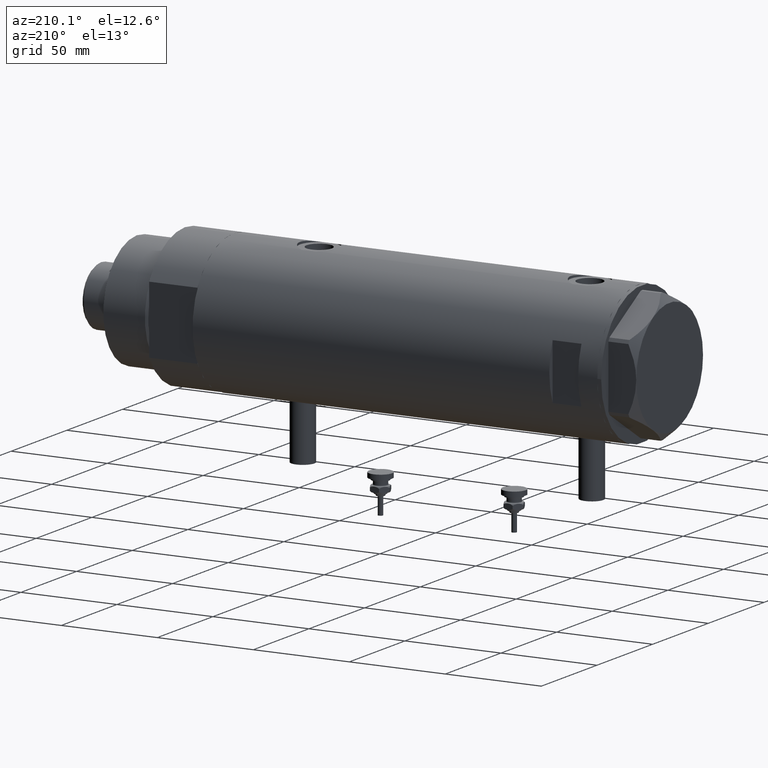
[diagram: clean part render]
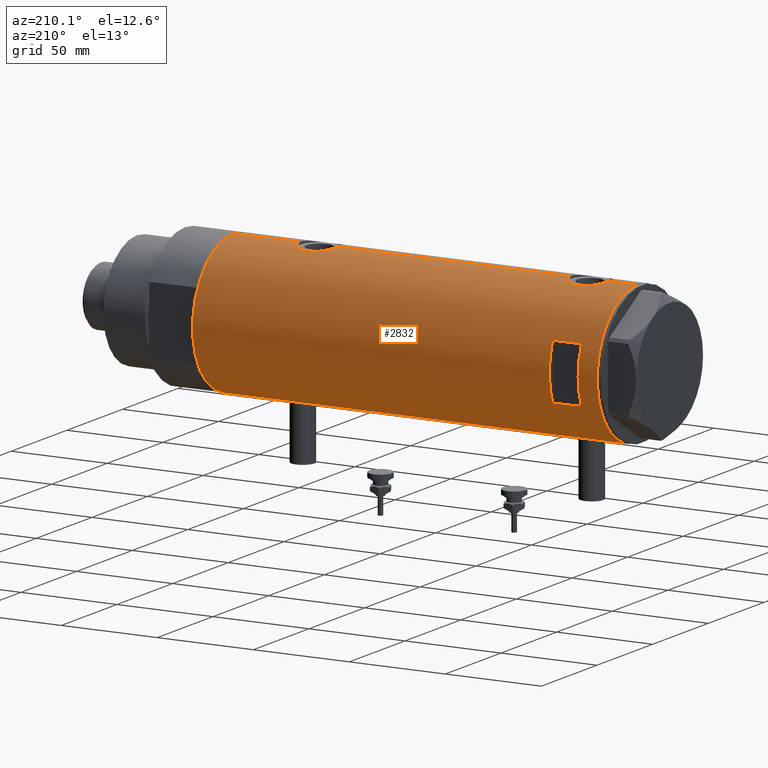
[diagram: same view with one face highlighted and labeled with its STEP entity id]
A machine part, auxiliary view. The second image highlights one B-rep face of the part: STEP entity #2832.
In plain terms, the highlighted cylindrical surface (partial cylindrical patch) has radius 36.5 mm, axis along (-1, -0, 0).
Its self-contained STEP definition (entity closure, byte-faithful):
#23 = CARTESIAN_POINT ( 'NONE',  ( 36.34264078466111414, 3.418717136061404371, 89.81049034040754009 ) ) ;
#111 = CARTESIAN_POINT ( 'NONE',  ( 36.50000000000000000, 0.000000000000000000, 70.40000000000000568 ) ) ;
#118 = CARTESIAN_POINT ( 'NONE',  ( 36.49999999999999289, 0.4961820988516178477, 90.39999999999997726 ) ) ;
#136 = CARTESIAN_POINT ( 'NONE',  ( -36.50000000000000000, 4.469960493350315609E-15, 75.14999999999999147 ) ) ;
#143 = CARTESIAN_POINT ( 'NONE',  ( 35.93456089024233790, 6.410413305453382726, -68.29085963204144605 ) ) ;
#170 = VERTEX_POINT ( 'NONE', #4750 ) ;
#200 = CARTESIAN_POINT ( 'NONE',  ( -36.03936508729894683, 5.782103729777506196, 83.79870532603797528 ) ) ;
#213 = VERTEX_POINT ( 'NONE', #111 ) ;
#219 = DIRECTION ( 'NONE',  ( 0.000000000000000000, 0.000000000000000000, 1.000000000000000000 ) ) ;
#234 = CARTESIAN_POINT ( 'NONE',  ( 35.34894515018992678, 9.096104616284845790, -64.78464083466536749 ) ) ;
#241 = CARTESIAN_POINT ( 'NONE',  ( 35.29999999999999716, 9.282241108697835585, -105.4000000000000057 ) ) ;
#246 = CARTESIAN_POINT ( 'NONE',  ( 36.50000000000000000, 0.000000000000000000, -105.4000000000000057 ) ) ;
#249 = ORIENTED_EDGE ( 'NONE', *, *, #3645, .T. ) ;
#253 = CARTESIAN_POINT ( 'NONE',  ( -36.44628644024910358, 2.015372769639943495, 75.46971871986416147 ) ) ;
#262 = CARTESIAN_POINT ( 'NONE',  ( 35.52737867031126484, 8.373910777960910323, -66.08860356717067930 ) ) ;
#268 = DIRECTION ( 'NONE',  ( 0.000000000000000000, 1.000000000000000000, -4.562560375171875891E-15 ) ) ;
#279 = CARTESIAN_POINT ( 'NONE',  ( -14.49137674618942562, 33.50000000000000000, 80.40000000000003411 ) ) ;
#281 = EDGE_CURVE ( 'NONE', #170, #213, #722, .T. ) ;
#289 = CARTESIAN_POINT ( 'NONE',  ( -36.01679413914728656, 5.919813138266330377, 83.41499691047036436 ) ) ;
#321 = CARTESIAN_POINT ( 'NONE',  ( 36.29420020483469500, 3.877527130731365901, 71.17901025599704212 ) ) ;
#341 = ORIENTED_EDGE ( 'NONE', *, *, #2806, .F. ) ;
#344 = CARTESIAN_POINT ( 'NONE',  ( 14.49137674618942739, 33.50000000000000000, 95.40000000000001990 ) ) ;
#349 = CARTESIAN_POINT ( 'NONE',  ( -36.01524716445114649, 5.931039972055518916, -71.11330731864657650 ) ) ;
#381 = CARTESIAN_POINT ( 'NONE',  ( -36.09617453667821252, 5.415318599347968664, -65.97293357327090746 ) ) ;
#432 = CARTESIAN_POINT ( 'NONE',  ( -36.44628644024910358, 2.015372769639943051, -75.03028128013583853 ) ) ;
#435 = CARTESIAN_POINT ( 'NONE',  ( -36.43371204571226230, 2.206934156026287397, -63.24902718329002482 ) ) ;
#466 = DIRECTION ( 'NONE',  ( 1.000000000000000000, 1.776356839400250465E-15, 0.000000000000000000 ) ) ;
#473 = AXIS2_PLACEMENT_3D ( 'NONE', #5382, #1971, #466 ) ;
#494 = CARTESIAN_POINT ( 'NONE',  ( 35.52347503888660896, 8.410566959990461555, -55.10046032740658006 ) ) ;
#512 = ORIENTED_EDGE ( 'NONE', *, *, #1857, .T. ) ;
#552 = AXIS2_PLACEMENT_3D ( 'NONE', #2249, #5915, #3624 ) ;
#605 = B_SPLINE_CURVE_WITH_KNOTS ( 'NONE', 3,
 ( #1312, #1794, #5449, #5015, #4536, #3176, #435, #3649, #1286, #3111, #2740, #4114, #2098, #4473, #381, #4449, #5902, #3964, #3084, #1788, #2685, #5881, #5384, #3566, #1763, #349, #3168, #1261, #2185, #4895, #5850, #4506, #1285, #3109, #3611, #4923, #3586, #1308, #432, #4955, #5438, #4074, #1343 ),
 .UNSPECIFIED., .F., .F.,
 ( 4, 2, 2, 2, 2, 2, 2, 2, 1, 2, 2, 2, 2, 2, 2, 2, 2, 2, 2, 2, 2, 4 ),
 ( 5.683504623013911987E-19, 0.001223527801214120518, 0.001835291701821175356, 0.002447055602428230194, 0.003670583403642342039, 0.004894111204856454317, 0.006117639006070565294, 0.006729402906677638130, 0.007341166807284710966, 0.007952930707891782067, 0.008564694608498856637, 0.009788222409713002309, 0.01101175021092714625, 0.01223527801214129365, 0.01284704191274838730, 0.01345880581335547749, 0.01468233361456966132, 0.01590586141578384169, 0.01651762531639093534, 0.01712938921699802552, 0.01835291701821222324, 0.01957644481942642095 ),
 .UNSPECIFIED. ) ;
#606 = LINE ( 'NONE', #2430, #2494 ) ;
#620 = CARTESIAN_POINT ( 'NONE',  ( 35.40502660484482789, 8.876998817796907915, -65.23098724071236632 ) ) ;
#642 = CARTESIAN_POINT ( 'NONE',  ( -36.39522946636253664, 2.769519034821243508, 75.79336076268727140 ) ) ;
#703 = CARTESIAN_POINT ( 'NONE',  ( -36.01524716445113938, 5.931039972055517140, 79.38669268135345192 ) ) ;
#712 = CARTESIAN_POINT ( 'NONE',  ( 36.36225053217121683, 3.177096004138046048, -70.08516024475980544 ) ) ;
#722 = LINE ( 'NONE', #246, #2184 ) ;
#742 = CARTESIAN_POINT ( 'NONE',  ( 36.34264078466110703, 3.418717136061401263, -51.18950965959248833 ) ) ;
#743 = LINE ( 'NONE', #2576, #5445 ) ;
#768 = CARTESIAN_POINT ( 'NONE',  ( -35.96094343308266161, 6.249843792257633979, 81.81087110344569169 ) ) ;
#773 = VERTEX_POINT ( 'NONE', #3971 ) ;
#776 = CARTESIAN_POINT ( 'NONE',  ( 36.00145998247696610, 6.026272765084655703, -52.60449611787613122 ) ) ;
#795 = CARTESIAN_POINT ( 'NONE',  ( 36.18948008481302026, 4.772042575486197258, 71.59822368756843503 ) ) ;
#817 = EDGE_CURVE ( 'NONE', #1106, #2647, #743, .T. ) ;
#824 = CARTESIAN_POINT ( 'NONE',  ( 35.29999999999999716, 9.282241108697832033, 84.12021504754764578 ) ) ;
#910 = CARTESIAN_POINT ( 'NONE',  ( -36.49292802938586533, 0.8230716655928910219, 75.19093061246483956 ) ) ;
#944 = CARTESIAN_POINT ( 'NONE',  ( 36.18937351723702989, 4.773052864917641358, 89.20135993118843487 ) ) ;
#999 = ORIENTED_EDGE ( 'NONE', *, *, #3782, .F. ) ;
#1006 = EDGE_CURVE ( 'NONE', #2925, #1957, #1642, .T. ) ;
#1025 = CARTESIAN_POINT ( 'NONE',  ( -36.50000000000000000, 4.469960493350315609E-15, -75.35000000000000853 ) ) ;
#1095 = CARTESIAN_POINT ( 'NONE',  ( -36.30181775639988473, 3.813582387016785535, 76.43163942425562141 ) ) ;
#1103 = CARTESIAN_POINT ( 'NONE',  ( 36.50000000000000000, 1.005842003469122004, -70.59999999999999432 ) ) ;
#1106 = VERTEX_POINT ( 'NONE', #5088 ) ;
#1125 = CARTESIAN_POINT ( 'NONE',  ( -36.19624103943463922, 4.708090268046847271, 85.53061221446137097 ) ) ;
#1134 = AXIS2_PLACEMENT_3D ( 'NONE', #3255, #4617, #1881 ) ;
#1146 = CARTESIAN_POINT ( 'NONE',  ( 35.29999999999999716, 9.282241108697832033, 76.67978495245235138 ) ) ;
#1174 = CARTESIAN_POINT ( 'NONE',  ( 36.18937351723702989, 4.773052864917637805, -51.79864006881157934 ) ) ;
#1201 = CARTESIAN_POINT ( 'NONE',  ( 36.45853166336080164, 1.985123042546143024, -70.45162670417735740 ) ) ;
#1214 = CARTESIAN_POINT ( 'NONE',  ( 35.79766710091575987, 7.135341284989890731, 73.37649479439095046 ) ) ;
#1216 = CARTESIAN_POINT ( 'NONE',  ( -36.11199073531170001, 5.309184630646988090, 84.70412840766836382 ) ) ;
#1239 = EDGE_CURVE ( 'NONE', #213, #5285, #5864, .T. ) ;
#1258 = VERTEX_POINT ( 'NONE', #344 ) ;
#1261 = CARTESIAN_POINT ( 'NONE',  ( -36.06690560274406465, 5.606949625760679901, -71.86885923958934086 ) ) ;
#1285 = CARTESIAN_POINT ( 'NONE',  ( -36.26695135241003953, 4.128455078791312793, -73.81037591644739848 ) ) ;
#1286 = CARTESIAN_POINT ( 'NONE',  ( -36.36688032967140316, 3.133094607697481493, -63.67663567362490085 ) ) ;
#1308 = CARTESIAN_POINT ( 'NONE',  ( -36.40902375114221456, 2.582415566883933256, -74.79521691469689415 ) ) ;
#1312 = CARTESIAN_POINT ( 'NONE',  ( -36.50000000000000000, -5.849986204104554638E-16, -62.85000000000000142 ) ) ;
#1338 = VECTOR ( 'NONE', #4464, 1000.000000000000000 ) ;
#1343 = CARTESIAN_POINT ( 'NONE',  ( -36.50000000000000000, 4.469960493350315609E-15, -75.35000000000000853 ) ) ;
#1392 = CARTESIAN_POINT ( 'NONE',  ( 35.69321149401849880, 7.633476302278300096, -54.13536927833557399 ) ) ;
#1399 = CARTESIAN_POINT ( 'NONE',  ( 36.41717583764487642, 2.469534783404760514, 90.09348011175671900 ) ) ;
#1425 = CARTESIAN_POINT ( 'NONE',  ( 35.39804469700249712, 8.909380959553015344, -55.94946835517159656 ) ) ;
#1429 = CYLINDRICAL_SURFACE ( 'NONE', #1134, 36.50000000000000000 ) ;
#1460 = CARTESIAN_POINT ( 'NONE',  ( 36.50000000000000000, 4.344614706140975428E-19, 90.39999999999999147 ) ) ;
#1464 = CARTESIAN_POINT ( 'NONE',  ( 35.72794581931695035, 7.469526493268199729, 87.05339796728263480 ) ) ;
#1556 = ORIENTED_EDGE ( 'NONE', *, *, #1006, .F. ) ;
#1576 = CARTESIAN_POINT ( 'NONE',  ( -36.11206433103227909, 5.308658295084049072, 78.09515351959024088 ) ) ;
#1583 = CARTESIAN_POINT ( 'NONE',  ( 36.29611582693039651, 3.878758190381166759, -51.36955010900450702 ) ) ;
#1591 = LINE ( 'NONE', #2553, #2574 ) ;
#1600 = B_SPLINE_CURVE_WITH_KNOTS ( 'NONE', 3,
 ( #2892, #4708, #1912, #5570, #1464, #4596, #4646, #2387, #2305, #4197, #944, #4111, #23, #1855, #1399, #3222, #2776, #2335, #118, #4133 ),
 .UNSPECIFIED., .F., .F.,
 ( 4, 2, 2, 2, 2, 2, 2, 2, 2, 4 ),
 ( 1.551583845779545699E-17, 0.002977391289382861662, 0.003721739111728563851, 0.004466086934074266906, 0.005954782578765698171, 0.007443478223457130304, 0.008932173868148563303, 0.009676521690494287176, 0.01042086951284001105, 0.01190956515753145012 ),
 .UNSPECIFIED. ) ;
#1607 = CARTESIAN_POINT ( 'NONE',  ( -36.39638105034455862, 2.774378062517170562, 87.01543332699102962 ) ) ;
#1642 = LINE ( 'NONE', #5718, #2458 ) ;
#1645 = CARTESIAN_POINT ( 'NONE',  ( -36.36688032967141027, 3.133094607697489931, 86.82336432637509915 ) ) ;
#1653 = CARTESIAN_POINT ( 'NONE',  ( 36.49999999999999289, 0.4961820988516180142, -50.59999999999998721 ) ) ;
#1713 = CARTESIAN_POINT ( 'NONE',  ( 36.40008489419981430, 2.709263960908028679, -50.97081895403610474 ) ) ;
#1732 = EDGE_LOOP ( 'NONE', ( #512, #5259, #3165, #3948, #341, #4035, #5785, #2546, #2778, #249, #4505, #2236, #999, #2730, #3869, #5408 ) ) ;
#1763 = CARTESIAN_POINT ( 'NONE',  ( -35.99530513653992614, 6.049346314076206710, -70.72332583035836251 ) ) ;
#1782 = CARTESIAN_POINT ( 'NONE',  ( 35.34894515018993388, 9.096104616284849342, 76.21535916533458987 ) ) ;
#1788 = CARTESIAN_POINT ( 'NONE',  ( -35.98846897517729815, 6.089479646546500646, -67.67765108453481560 ) ) ;
#1794 = CARTESIAN_POINT ( 'NONE',  ( -36.50000000000000000, 0.4137727629436734333, -62.84999999999998721 ) ) ;
#1855 = CARTESIAN_POINT ( 'NONE',  ( 36.40008489419980720, 2.709263960908030899, 90.02918104596392368 ) ) ;
#1857 = EDGE_CURVE ( 'NONE', #4522, #3504, #2370, .T. ) ;
#1881 = DIRECTION ( 'NONE',  ( 1.000000000000000000, 0.000000000000000000, 0.000000000000000000 ) ) ;
#1903 = AXIS2_PLACEMENT_3D ( 'NONE', #2633, #2190, #2578 ) ;
#1912 = CARTESIAN_POINT ( 'NONE',  ( 35.52347503888661606, 8.410566959990463332, 85.89953967259343415 ) ) ;
#1926 = CARTESIAN_POINT ( 'NONE',  ( -36.50000000000000000, 4.469960816887837641E-15, 105.4000000000000057 ) ) ;
#1957 = VERTEX_POINT ( 'NONE', #2816 ) ;
#1971 = DIRECTION ( 'NONE',  ( -0.000000000000000000, -0.000000000000000000, -1.000000000000000000 ) ) ;
#1978 = CARTESIAN_POINT ( 'NONE',  ( 35.72860827204724643, 7.471059959301278752, -67.26525150474407155 ) ) ;
#1985 = DIRECTION ( 'NONE',  ( -0.000000000000000000, -0.000000000000000000, -1.000000000000000000 ) ) ;
#2001 = VECTOR ( 'NONE', #4581, 1000.000000000000000 ) ;
#2022 = LINE ( 'NONE', #5313, #4085 ) ;
#2032 = CARTESIAN_POINT ( 'NONE',  ( 36.50000000000000000, 0.000000000000000000, 105.4000000000000057 ) ) ;
#2033 = CARTESIAN_POINT ( 'NONE',  ( -36.30200038006935870, 3.811959488093746184, 86.36972104836003439 ) ) ;
#2042 = EDGE_CURVE ( 'NONE', #4028, #4670, #3529, .T. ) ;
#2060 = CARTESIAN_POINT ( 'NONE',  ( -36.49297130294515057, 0.8204796224394288462, 87.60931692217734224 ) ) ;
#2093 = CARTESIAN_POINT ( 'NONE',  ( -36.46598788992681506, 1.625721481788709344, 75.35127953286161073 ) ) ;
#2094 = ORIENTED_EDGE ( 'NONE', *, *, #3468, .F. ) ;
#2098 = CARTESIAN_POINT ( 'NONE',  ( -36.16126303108063667, 4.966520032693295228, -65.28358772254718190 ) ) ;
#2102 = CARTESIAN_POINT ( 'NONE',  ( 35.29999999999999716, 9.282241108697832033, -64.32021504754764862 ) ) ;
#2111 = VECTOR ( 'NONE', #2192, 1000.000000000000000 ) ;
#2130 = EDGE_CURVE ( 'NONE', #2604, #2925, #3138, .T. ) ;
#2154 = CARTESIAN_POINT ( 'NONE',  ( 36.13018480315371761, 5.199168368309160293, 71.84353501791950691 ) ) ;
#2156 = CARTESIAN_POINT ( 'NONE',  ( -35.99700617875953412, 6.038972911021586398, 83.02333185798322290 ) ) ;
#2167 = VERTEX_POINT ( 'NONE', #3526 ) ;
#2184 = VECTOR ( 'NONE', #5741, 1000.000000000000000 ) ;
#2185 = CARTESIAN_POINT ( 'NONE',  ( -36.09643313249888763, 5.413601294342280212, -72.23007773391850606 ) ) ;
#2190 = DIRECTION ( 'NONE',  ( 0.000000000000000000, 0.000000000000000000, 1.000000000000000000 ) ) ;
#2192 = DIRECTION ( 'NONE',  ( 0.000000000000000000, 0.000000000000000000, 1.000000000000000000 ) ) ;
#2234 = CARTESIAN_POINT ( 'NONE',  ( 36.26917563968160607, 4.104523505324173982, 71.27784011632526529 ) ) ;
#2236 = ORIENTED_EDGE ( 'NONE', *, *, #281, .F. ) ;
#2249 = CARTESIAN_POINT ( 'NONE',  ( 0.000000000000000000, 0.000000000000000000, -105.4000000000000057 ) ) ;
#2263 = CARTESIAN_POINT ( 'NONE',  ( -36.50000000000000000, 4.469960493350315609E-15, 75.14999999999999147 ) ) ;
#2298 = VERTEX_POINT ( 'NONE', #1460 ) ;
#2305 = CARTESIAN_POINT ( 'NONE',  ( 36.00145998247696610, 6.026272765084661032, 88.39550388212386167 ) ) ;
#2335 = CARTESIAN_POINT ( 'NONE',  ( 36.48988646280794512, 0.9921857666168150125, 90.36328115134425332 ) ) ;
#2370 = CIRCLE ( 'NONE', #552, 36.50000000000000000 ) ;
#2387 = CARTESIAN_POINT ( 'NONE',  ( 35.93435287561198521, 6.411571491280765756, 88.08988644922843037 ) ) ;
#2430 = CARTESIAN_POINT ( 'NONE',  ( 14.49137674618942562, 33.50000000000000000, -105.4000000000000057 ) ) ;
#2458 = VECTOR ( 'NONE', #5661, 1000.000000000000000 ) ;
#2471 = CARTESIAN_POINT ( 'NONE',  ( -35.98846897517731236, 6.089479646546502423, 82.82234891546522704 ) ) ;
#2494 = VECTOR ( 'NONE', #1985, 1000.000000000000000 ) ;
#2506 = CARTESIAN_POINT ( 'NONE',  ( -36.40902375114221456, 2.582415566883933256, 75.70478308530312006 ) ) ;
#2516 = CARTESIAN_POINT ( 'NONE',  ( 35.83170458557578542, 6.955065627744197343, -53.41058328087536466 ) ) ;
#2535 = CARTESIAN_POINT ( 'NONE',  ( -36.47290054070997911, 1.420408912806973678, 87.48986981660016227 ) ) ;
#2544 = CARTESIAN_POINT ( 'NONE',  ( 36.26917563968161318, 4.104523505324172206, -69.72215988367474893 ) ) ;
#2546 = ORIENTED_EDGE ( 'NONE', *, *, #4414, .F. ) ;
#2553 = CARTESIAN_POINT ( 'NONE',  ( 36.50000000000000000, 0.000000000000000000, -105.4000000000000057 ) ) ;
#2560 = CARTESIAN_POINT ( 'NONE',  ( 35.40502660484482078, 8.876998817796904362, 75.76901275928764790 ) ) ;
#2574 = VECTOR ( 'NONE', #219, 1000.000000000000000 ) ;
#2576 = CARTESIAN_POINT ( 'NONE',  ( -36.50000000000000000, 4.469960816887837641E-15, -105.4000000000000057 ) ) ;
#2578 = DIRECTION ( 'NONE',  ( 1.000000000000000000, 0.000000000000000000, 0.000000000000000000 ) ) ;
#2603 = CARTESIAN_POINT ( 'NONE',  ( -36.09643313249890184, 5.413601294342284653, 78.26992226608150816 ) ) ;
#2604 = VERTEX_POINT ( 'NONE', #5311 ) ;
#2625 = CARTESIAN_POINT ( 'NONE',  ( 35.93456089024233790, 6.410413305453380950, 72.70914036795855395 ) ) ;
#2633 = CARTESIAN_POINT ( 'NONE',  ( 0.000000000000000000, 0.000000000000000000, 105.4000000000000057 ) ) ;
#2644 = CARTESIAN_POINT ( 'NONE',  ( 36.50000000000000000, 0.000000000000000000, 70.40000000000000568 ) ) ;
#2647 = VERTEX_POINT ( 'NONE', #2263 ) ;
#2664 = VERTEX_POINT ( 'NONE', #3612 ) ;
#2685 = CARTESIAN_POINT ( 'NONE',  ( -35.96793274302674348, 6.210029014836887740, -68.28305762320682959 ) ) ;
#2730 = ORIENTED_EDGE ( 'NONE', *, *, #5297, .T. ) ;
#2740 = CARTESIAN_POINT ( 'NONE',  ( -36.26643311080166399, 4.132772529026634167, -64.39380594730117480 ) ) ;
#2776 = CARTESIAN_POINT ( 'NONE',  ( 36.45954139109321090, 1.735915671103594349, 90.25136781147007525 ) ) ;
#2778 = ORIENTED_EDGE ( 'NONE', *, *, #3994, .F. ) ;
#2802 = CARTESIAN_POINT ( 'NONE',  ( -36.50000000000000000, 4.469960816887837641E-15, -105.4000000000000057 ) ) ;
#2806 = EDGE_CURVE ( 'NONE', #773, #2647, #3950, .T. ) ;
#2816 = CARTESIAN_POINT ( 'NONE',  ( -14.49137674618942739, 33.50000000000000000, 95.40000000000001990 ) ) ;
#2832 = ADVANCED_FACE ( 'NONE', ( #3217, #3304 ), #1429, .T. ) ;
#2850 = LINE ( 'NONE', #3757, #2001 ) ;
#2892 = CARTESIAN_POINT ( 'NONE',  ( 35.29999999999999716, 9.282241108697832033, 84.12021504754764578 ) ) ;
#2898 = VERTEX_POINT ( 'NONE', #1025 ) ;
#2923 = CARTESIAN_POINT ( 'NONE',  ( -36.36587679577596077, 3.131448301962866054, 75.98717534426381803 ) ) ;
#2925 = VERTEX_POINT ( 'NONE', #279 ) ;
#2955 = CARTESIAN_POINT ( 'NONE',  ( -35.99530513653993324, 6.049346314076207598, 79.77667416964166591 ) ) ;
#2991 = CARTESIAN_POINT ( 'NONE',  ( -35.96088929326157313, 6.250155299092687855, 80.99389505236753450 ) ) ;
#3046 = AXIS2_PLACEMENT_3D ( 'NONE', #3456, #3510, #268 ) ;
#3084 = CARTESIAN_POINT ( 'NONE',  ( -35.99700617875953412, 6.038972911021587286, -67.47666814201679131 ) ) ;
#3100 = LINE ( 'NONE', #4914, #1338 ) ;
#3109 = CARTESIAN_POINT ( 'NONE',  ( -36.30181775639987052, 3.813582387016787312, -74.06836057574437859 ) ) ;
#3111 = CARTESIAN_POINT ( 'NONE',  ( -36.30200038006935870, 3.811959488093740411, -64.13027895163995140 ) ) ;
#3138 = CIRCLE ( 'NONE', #3046, 36.50000000000000000 ) ;
#3165 = ORIENTED_EDGE ( 'NONE', *, *, #3861, .F. ) ;
#3168 = CARTESIAN_POINT ( 'NONE',  ( -36.05296344941216802, 5.695624845616830356, -71.68154856536759212 ) ) ;
#3176 = CARTESIAN_POINT ( 'NONE',  ( -36.44504802628534890, 2.011764947064735409, -63.17906355091480464 ) ) ;
#3202 = ORIENTED_EDGE ( 'NONE', *, *, #2130, .F. ) ;
#3217 = FACE_BOUND ( 'NONE', #4850, .T. ) ;
#3222 = CARTESIAN_POINT ( 'NONE',  ( 36.44688397185922923, 1.983417953489138297, 90.20449957648254724 ) ) ;
#3255 = CARTESIAN_POINT ( 'NONE',  ( 0.000000000000000000, 0.000000000000000000, -105.4000000000000057 ) ) ;
#3304 = FACE_OUTER_BOUND ( 'NONE', #1732, .T. ) ;
#3306 = B_SPLINE_CURVE_WITH_KNOTS ( 'NONE', 3,
 ( #5305, #1103, #1201, #712, #5207, #4714, #2544, #3875, #5729, #5635, #143, #3352, #1978, #5700, #262, #620, #234, #2102 ),
 .UNSPECIFIED., .F., .F.,
 ( 4, 2, 2, 2, 2, 2, 2, 2, 4 ),
 ( -1.084202172485504434E-18, 0.002973648994175745811, 0.003717061242719678360, 0.004460473491263610910, 0.005947297988351454325, 0.007434122485439297739, 0.008920946982527140287, 0.01040777147961498283, 0.01189459597670282365 ),
 .UNSPECIFIED. ) ;
#3352 = CARTESIAN_POINT ( 'NONE',  ( 35.79766710091575987, 7.135341284989892507, -67.62350520560906375 ) ) ;
#3355 = CARTESIAN_POINT ( 'NONE',  ( 35.29999999999999716, 9.282241108697832033, -56.87978495245235422 ) ) ;
#3405 = CARTESIAN_POINT ( 'NONE',  ( -36.16083474549354548, 4.969527450313384165, 77.58794680877252858 ) ) ;
#3440 = CARTESIAN_POINT ( 'NONE',  ( -36.09617453667821252, 5.415318599347968664, 84.52706642672910675 ) ) ;
#3452 = CARTESIAN_POINT ( 'NONE',  ( 36.12877841835538106, 5.208882251161921495, -52.04946835209709377 ) ) ;
#3456 = CARTESIAN_POINT ( 'NONE',  ( 0.000000000000000000, 0.000000000000000000, 80.40000000000017621 ) ) ;
#3468 = EDGE_CURVE ( 'NONE', #1957, #1258, #4287, .T. ) ;
#3504 = VERTEX_POINT ( 'NONE', #2802 ) ;
#3510 = DIRECTION ( 'NONE',  ( 0.000000000000000000, 4.625929269271492422E-15, 1.000000000000000000 ) ) ;
#3525 = CARTESIAN_POINT ( 'NONE',  ( 36.49999999999999289, 1.005842003469121781, 70.40000000000001990 ) ) ;
#3526 = CARTESIAN_POINT ( 'NONE',  ( 35.29999999999999716, 9.282241108697832033, -64.32021504754764862 ) ) ;
#3529 = CIRCLE ( 'NONE', #1903, 36.50000000000000000 ) ;
#3541 = CARTESIAN_POINT ( 'NONE',  ( 36.48988646280793802, 0.9921857666168130141, -50.63671884865574668 ) ) ;
#3566 = CARTESIAN_POINT ( 'NONE',  ( -35.96805604460922012, 6.209309709790233889, -69.92112758268173422 ) ) ;
#3583 = CARTESIAN_POINT ( 'NONE',  ( 36.36225053217120262, 3.177096004138046048, 70.91483975524022298 ) ) ;
#3586 = CARTESIAN_POINT ( 'NONE',  ( -36.39522946636253664, 2.769519034821244396, -74.70663923731272860 ) ) ;
#3611 = CARTESIAN_POINT ( 'NONE',  ( -36.35033317675379294, 3.306376218664579980, -74.40770719416053680 ) ) ;
#3612 = CARTESIAN_POINT ( 'NONE',  ( 35.29999999999999716, 9.282241108697832033, -56.87978495245235422 ) ) ;
#3624 = DIRECTION ( 'NONE',  ( 1.000000000000000000, 0.000000000000000000, 0.000000000000000000 ) ) ;
#3645 = EDGE_CURVE ( 'NONE', #4818, #5285, #3100, .T. ) ;
#3649 = CARTESIAN_POINT ( 'NONE',  ( -36.39638105034455151, 2.774378062517169674, -63.48456667300896328 ) ) ;
#3687 = CARTESIAN_POINT ( 'NONE',  ( 35.72794581931695745, 7.469526493268201506, -53.94660203271736520 ) ) ;
#3739 = VERTEX_POINT ( 'NONE', #3955 ) ;
#3744 = B_SPLINE_CURVE_WITH_KNOTS ( 'NONE', 3,
 ( #3355, #1425, #494, #1392, #3687, #5075, #2516, #4425, #776, #3452, #1174, #1583, #742, #1713, #5702, #4393, #5306, #3541, #1653, #4331 ),
 .UNSPECIFIED., .F., .F.,
 ( 4, 2, 2, 2, 2, 2, 2, 2, 2, 4 ),
 ( 1.551583845779545699E-17, 0.002977391289382848218, 0.003721739111728565152, 0.004466086934074281652, 0.005954782578765715519, 0.007443478223457148518, 0.008932173868148582385, 0.009676521690494299319, 0.01042086951284001625, 0.01190956515753145185 ),
 .UNSPECIFIED. ) ;
#3757 = CARTESIAN_POINT ( 'NONE',  ( 36.50000000000000000, 0.000000000000000000, -105.4000000000000057 ) ) ;
#3782 = EDGE_CURVE ( 'NONE', #2664, #170, #3744, .T. ) ;
#3861 = EDGE_CURVE ( 'NONE', #1106, #2898, #605, .T. ) ;
#3869 = ORIENTED_EDGE ( 'NONE', *, *, #4732, .F. ) ;
#3875 = CARTESIAN_POINT ( 'NONE',  ( 36.18948008481303447, 4.772042575486197258, -69.40177631243156497 ) ) ;
#3885 = DIRECTION ( 'NONE',  ( -0.000000000000000000, -0.000000000000000000, -1.000000000000000000 ) ) ;
#3933 = CARTESIAN_POINT ( 'NONE',  ( -35.96793274302675059, 6.210029014836887740, 82.21694237679317041 ) ) ;
#3948 = ORIENTED_EDGE ( 'NONE', *, *, #817, .T. ) ;
#3950 = B_SPLINE_CURVE_WITH_KNOTS ( 'NONE', 3,
 ( #4796, #4321, #2060, #2535, #5322, #5293, #4351, #1607, #1645, #2033, #5201, #1125, #4855, #1216, #3440, #5264, #200, #289, #2156, #2471, #3933, #768, #2991, #4763, #2955, #703, #5691, #5784, #2603, #1576, #3405, #3957, #4418, #1095, #5229, #2923, #642, #2506, #253, #2093, #910, #4643, #136 ),
 .UNSPECIFIED., .F., .F.,
 ( 4, 2, 2, 2, 2, 2, 2, 2, 1, 2, 2, 2, 2, 2, 2, 2, 2, 2, 2, 2, 2, 4 ),
 ( 1.367394070233553059E-18, 0.001223527801214184920, 0.001835291701821280957, 0.002447055602428376345, 0.003670583403642568420, 0.004894111204856760496, 0.006117639006070953005, 0.006729402906678031912, 0.007341166807285110819, 0.007952930707892187992, 0.008564694608499267767, 0.009788222409713425581, 0.01101175021092758340, 0.01223527801214174121, 0.01284704191274879843, 0.01345880581335585913, 0.01468233361456997531, 0.01590586141578409149, 0.01651762531639115392, 0.01712938921699821287, 0.01835291701821231691, 0.01957644481942642095 ),
 .UNSPECIFIED. ) ;
#3955 = CARTESIAN_POINT ( 'NONE',  ( 36.50000000000000000, 0.000000000000000000, -70.59999999999999432 ) ) ;
#3957 = CARTESIAN_POINT ( 'NONE',  ( -36.19597718496777361, 4.710322426433901200, 77.27148389237981974 ) ) ;
#3964 = CARTESIAN_POINT ( 'NONE',  ( -36.01679413914727235, 5.919813138266325048, -67.08500308952962143 ) ) ;
#3971 = CARTESIAN_POINT ( 'NONE',  ( -36.50000000000000000, 1.407447864834978200E-15, 87.65000000000000568 ) ) ;
#3988 = CARTESIAN_POINT ( 'NONE',  ( 36.34070350304396158, 3.414301401755541310, 70.99763782624093267 ) ) ;
#3994 = EDGE_CURVE ( 'NONE', #4818, #2298, #1600, .T. ) ;
#4028 = VERTEX_POINT ( 'NONE', #2032 ) ;
#4035 = ORIENTED_EDGE ( 'NONE', *, *, #4367, .T. ) ;
#4044 = CARTESIAN_POINT ( 'NONE',  ( 35.59366931936805400, 8.089554397885866166, 74.50072680912187195 ) ) ;
#4074 = CARTESIAN_POINT ( 'NONE',  ( -36.50000000000000711, 0.4083036190459274350, -75.35000000000002274 ) ) ;
#4085 = VECTOR ( 'NONE', #4725, 1000.000000000000000 ) ;
#4111 = CARTESIAN_POINT ( 'NONE',  ( 36.29611582693039651, 3.878758190381167648, 89.63044989099550719 ) ) ;
#4114 = CARTESIAN_POINT ( 'NONE',  ( -36.19624103943463211, 4.708090268046848159, -64.96938778553862903 ) ) ;
#4133 = CARTESIAN_POINT ( 'NONE',  ( 36.50000000000000000, 4.344614706140975428E-19, 90.39999999999999147 ) ) ;
#4197 = CARTESIAN_POINT ( 'NONE',  ( 36.12877841835538817, 5.208882251161925936, 88.95053164790290623 ) ) ;
#4276 = EDGE_CURVE ( 'NONE', #4522, #3739, #2850, .T. ) ;
#4287 = CIRCLE ( 'NONE', #473, 36.50000000000000000 ) ;
#4321 = CARTESIAN_POINT ( 'NONE',  ( -36.49999999999999289, 0.4137727629436736554, 87.65000000000000568 ) ) ;
#4331 = CARTESIAN_POINT ( 'NONE',  ( 36.50000000000000000, 4.344609657431182014E-19, -50.60000000000000853 ) ) ;
#4339 = LINE ( 'NONE', #241, #4481 ) ;
#4351 = CARTESIAN_POINT ( 'NONE',  ( -36.43371204571226940, 2.206934156026287397, 87.25097281670997518 ) ) ;
#4367 = EDGE_CURVE ( 'NONE', #773, #4670, #2022, .T. ) ;
#4393 = CARTESIAN_POINT ( 'NONE',  ( 36.44688397185920792, 1.983417953489134300, -50.79550042351748829 ) ) ;
#4394 = DIRECTION ( 'NONE',  ( 0.000000000000000000, 0.000000000000000000, 1.000000000000000000 ) ) ;
#4414 = EDGE_CURVE ( 'NONE', #2298, #4028, #1591, .T. ) ;
#4418 = CARTESIAN_POINT ( 'NONE',  ( -36.26695135241003953, 4.128455078791301247, 76.68962408355262994 ) ) ;
#4425 = CARTESIAN_POINT ( 'NONE',  ( 35.93435287561197811, 6.411571491280765756, -52.91011355077158385 ) ) ;
#4444 = CARTESIAN_POINT ( 'NONE',  ( 35.29999999999999716, 9.282241108697832033, 76.67978495245235138 ) ) ;
#4449 = CARTESIAN_POINT ( 'NONE',  ( -36.06675137892952421, 5.607935153446979903, -66.33318173991243327 ) ) ;
#4464 = DIRECTION ( 'NONE',  ( -0.000000000000000000, -0.000000000000000000, -1.000000000000000000 ) ) ;
#4473 = CARTESIAN_POINT ( 'NONE',  ( -36.11199073531172132, 5.309184630646989866, -65.79587159233167881 ) ) ;
#4481 = VECTOR ( 'NONE', #3885, 1000.000000000000000 ) ;
#4505 = ORIENTED_EDGE ( 'NONE', *, *, #1239, .F. ) ;
#4506 = CARTESIAN_POINT ( 'NONE',  ( -36.19597718496778072, 4.710322426433910969, -73.22851610762013763 ) ) ;
#4514 = ORIENTED_EDGE ( 'NONE', *, *, #5932, .F. ) ;
#4520 = CARTESIAN_POINT ( 'NONE',  ( 36.50000000000000000, 0.000000000000000000, -105.4000000000000057 ) ) ;
#4522 = VERTEX_POINT ( 'NONE', #4520 ) ;
#4536 = CARTESIAN_POINT ( 'NONE',  ( -36.46462099658054967, 1.618684470865504821, -63.05975602975154004 ) ) ;
#4581 = DIRECTION ( 'NONE',  ( 0.000000000000000000, 0.000000000000000000, 1.000000000000000000 ) ) ;
#4596 = CARTESIAN_POINT ( 'NONE',  ( 35.79715675463678792, 7.130463293899335753, 87.41555584105994114 ) ) ;
#4617 = DIRECTION ( 'NONE',  ( 0.000000000000000000, 0.000000000000000000, 1.000000000000000000 ) ) ;
#4643 = CARTESIAN_POINT ( 'NONE',  ( -36.50000000000000000, 0.4083036190459313763, 75.14999999999996305 ) ) ;
#4646 = CARTESIAN_POINT ( 'NONE',  ( 35.83170458557578542, 6.955065627744196455, 87.58941671912465665 ) ) ;
#4670 = VERTEX_POINT ( 'NONE', #1926 ) ;
#4708 = CARTESIAN_POINT ( 'NONE',  ( 35.39804469700249001, 8.909380959553013568, 85.05053164482841055 ) ) ;
#4714 = CARTESIAN_POINT ( 'NONE',  ( 36.29420020483473053, 3.877527130731367233, -69.82098974400294367 ) ) ;
#4725 = DIRECTION ( 'NONE',  ( 0.000000000000000000, 0.000000000000000000, 1.000000000000000000 ) ) ;
#4732 = EDGE_CURVE ( 'NONE', #3739, #2167, #3306, .T. ) ;
#4750 = CARTESIAN_POINT ( 'NONE',  ( 36.50000000000000000, 4.344609657431182014E-19, -50.60000000000000853 ) ) ;
#4763 = CARTESIAN_POINT ( 'NONE',  ( -35.96805604460922012, 6.209309709790233889, 80.57887241731827999 ) ) ;
#4796 = CARTESIAN_POINT ( 'NONE',  ( -36.50000000000000000, 1.407447864834978200E-15, 87.65000000000000568 ) ) ;
#4818 = VERTEX_POINT ( 'NONE', #824 ) ;
#4842 = LINE ( 'NONE', #5828, #2111 ) ;
#4850 = EDGE_LOOP ( 'NONE', ( #1556, #3202, #4514, #2094 ) ) ;
#4855 = CARTESIAN_POINT ( 'NONE',  ( -36.16126303108063667, 4.966520032693296116, 85.21641227745284652 ) ) ;
#4895 = CARTESIAN_POINT ( 'NONE',  ( -36.11206433103226487, 5.308658295084045520, -72.40484648040975912 ) ) ;
#4914 = CARTESIAN_POINT ( 'NONE',  ( 35.29999999999999716, 9.282241108697835585, -105.4000000000000057 ) ) ;
#4923 = CARTESIAN_POINT ( 'NONE',  ( -36.36587679577596077, 3.131448301962866054, -74.51282465573619618 ) ) ;
#4955 = CARTESIAN_POINT ( 'NONE',  ( -36.46598788992681506, 1.625721481788708900, -75.14872046713838927 ) ) ;
#5015 = CARTESIAN_POINT ( 'NONE',  ( -36.47290054070997201, 1.420408912806972124, -63.01013018339985194 ) ) ;
#5075 = CARTESIAN_POINT ( 'NONE',  ( 35.79715675463678792, 7.130463293899339305, -53.58444415894006596 ) ) ;
#5088 = CARTESIAN_POINT ( 'NONE',  ( -36.50000000000000000, -5.849986204104554638E-16, -62.85000000000000142 ) ) ;
#5201 = CARTESIAN_POINT ( 'NONE',  ( -36.26643311080165688, 4.132772529026634167, 86.10619405269881099 ) ) ;
#5207 = CARTESIAN_POINT ( 'NONE',  ( 36.34070350304396868, 3.414301401755541754, -70.00236217375906733 ) ) ;
#5229 = CARTESIAN_POINT ( 'NONE',  ( -36.35033317675381426, 3.306376218664582645, 76.09229280583950583 ) ) ;
#5259 = ORIENTED_EDGE ( 'NONE', *, *, #5302, .T. ) ;
#5264 = CARTESIAN_POINT ( 'NONE',  ( -36.06675137892953131, 5.607935153446980792, 84.16681826008758094 ) ) ;
#5285 = VERTEX_POINT ( 'NONE', #1146 ) ;
#5293 = CARTESIAN_POINT ( 'NONE',  ( -36.44504802628534890, 2.011764947064737186, 87.32093644908518115 ) ) ;
#5297 = EDGE_CURVE ( 'NONE', #2664, #2167, #4339, .T. ) ;
#5302 = EDGE_CURVE ( 'NONE', #3504, #2898, #4842, .T. ) ;
#5305 = CARTESIAN_POINT ( 'NONE',  ( 36.50000000000000000, 0.000000000000000000, -70.59999999999999432 ) ) ;
#5306 = CARTESIAN_POINT ( 'NONE',  ( 36.45954139109320380, 1.735915671103592794, -50.74863218852989633 ) ) ;
#5311 = CARTESIAN_POINT ( 'NONE',  ( 14.49137674618942384, 33.50000000000000000, 80.40000000000003411 ) ) ;
#5313 = CARTESIAN_POINT ( 'NONE',  ( -36.50000000000000000, 4.469960816887837641E-15, -105.4000000000000057 ) ) ;
#5320 = CARTESIAN_POINT ( 'NONE',  ( 36.45853166336080164, 1.985123042546143024, 70.54837329582262839 ) ) ;
#5322 = CARTESIAN_POINT ( 'NONE',  ( -36.46462099658055678, 1.618684470865506375, 87.44024397024844575 ) ) ;
#5349 = CARTESIAN_POINT ( 'NONE',  ( 36.00287854058830561, 6.017835360302999703, 72.39811882818277411 ) ) ;
#5382 = CARTESIAN_POINT ( 'NONE',  ( 0.000000000000000000, 0.000000000000000000, 95.40000000000001990 ) ) ;
#5384 = CARTESIAN_POINT ( 'NONE',  ( -35.96088929326157313, 6.250155299092686967, -69.50610494763246550 ) ) ;
#5408 = ORIENTED_EDGE ( 'NONE', *, *, #4276, .F. ) ;
#5438 = CARTESIAN_POINT ( 'NONE',  ( -36.49292802938587954, 0.8230716655928912440, -75.30906938753517466 ) ) ;
#5445 = VECTOR ( 'NONE', #4394, 1000.000000000000000 ) ;
#5449 = CARTESIAN_POINT ( 'NONE',  ( -36.49297130294515057, 0.8204796224394284021, -62.89068307782267908 ) ) ;
#5570 = CARTESIAN_POINT ( 'NONE',  ( 35.69321149401851301, 7.633476302278301873, 86.86463072166442601 ) ) ;
#5635 = CARTESIAN_POINT ( 'NONE',  ( 36.00287854058831272, 6.017835360302997039, -68.60188117181725431 ) ) ;
#5661 = DIRECTION ( 'NONE',  ( 0.000000000000000000, 0.000000000000000000, 1.000000000000000000 ) ) ;
#5691 = CARTESIAN_POINT ( 'NONE',  ( -36.05296344941213960, 5.695624845616829468, 78.81845143463239367 ) ) ;
#5700 = CARTESIAN_POINT ( 'NONE',  ( 35.59366931936804690, 8.089554397885864390, -66.49927319087814226 ) ) ;
#5702 = CARTESIAN_POINT ( 'NONE',  ( 36.41717583764486221, 2.469534783404756073, -50.90651988824328100 ) ) ;
#5718 = CARTESIAN_POINT ( 'NONE',  ( -14.49137674618942562, 33.50000000000000000, -105.4000000000000057 ) ) ;
#5729 = CARTESIAN_POINT ( 'NONE',  ( 36.13018480315371761, 5.199168368309158517, -69.15646498208050730 ) ) ;
#5741 = DIRECTION ( 'NONE',  ( 0.000000000000000000, 0.000000000000000000, 1.000000000000000000 ) ) ;
#5784 = CARTESIAN_POINT ( 'NONE',  ( -36.06690560274405044, 5.606949625760678124, 78.63114076041068756 ) ) ;
#5785 = ORIENTED_EDGE ( 'NONE', *, *, #2042, .F. ) ;
#5828 = CARTESIAN_POINT ( 'NONE',  ( -36.50000000000000000, 4.469960816887837641E-15, -105.4000000000000057 ) ) ;
#5850 = CARTESIAN_POINT ( 'NONE',  ( -36.16083474549354548, 4.969527450313385053, -72.91205319122752826 ) ) ;
#5864 = B_SPLINE_CURVE_WITH_KNOTS ( 'NONE', 3,
 ( #2644, #3525, #5320, #3583, #3988, #321, #2234, #795, #2154, #5349, #2625, #1214, #5876, #4044, #5898, #2560, #1782, #4444 ),
 .UNSPECIFIED., .F., .F.,
 ( 4, 2, 2, 2, 2, 2, 2, 2, 4 ),
 ( -8.673617379884035472E-19, 0.002973648994175663411, 0.003717061242719586420, 0.004460473491263509428, 0.005947297988351372793, 0.007434122485439235289, 0.008920946982527096919, 0.01040777147961496202, 0.01189459597670282365 ),
 .UNSPECIFIED. ) ;
#5876 = CARTESIAN_POINT ( 'NONE',  ( 35.72860827204724643, 7.471059959301278752, 73.73474849525591424 ) ) ;
#5881 = CARTESIAN_POINT ( 'NONE',  ( -35.96094343308264740, 6.249843792257632202, -68.68912889655432252 ) ) ;
#5898 = CARTESIAN_POINT ( 'NONE',  ( 35.52737867031127195, 8.373910777960903218, 74.91139643282933491 ) ) ;
#5902 = CARTESIAN_POINT ( 'NONE',  ( -36.03936508729894683, 5.782103729777504419, -66.70129467396202472 ) ) ;
#5915 = DIRECTION ( 'NONE',  ( 0.000000000000000000, 0.000000000000000000, 1.000000000000000000 ) ) ;
#5932 = EDGE_CURVE ( 'NONE', #1258, #2604, #606, .T. ) ;